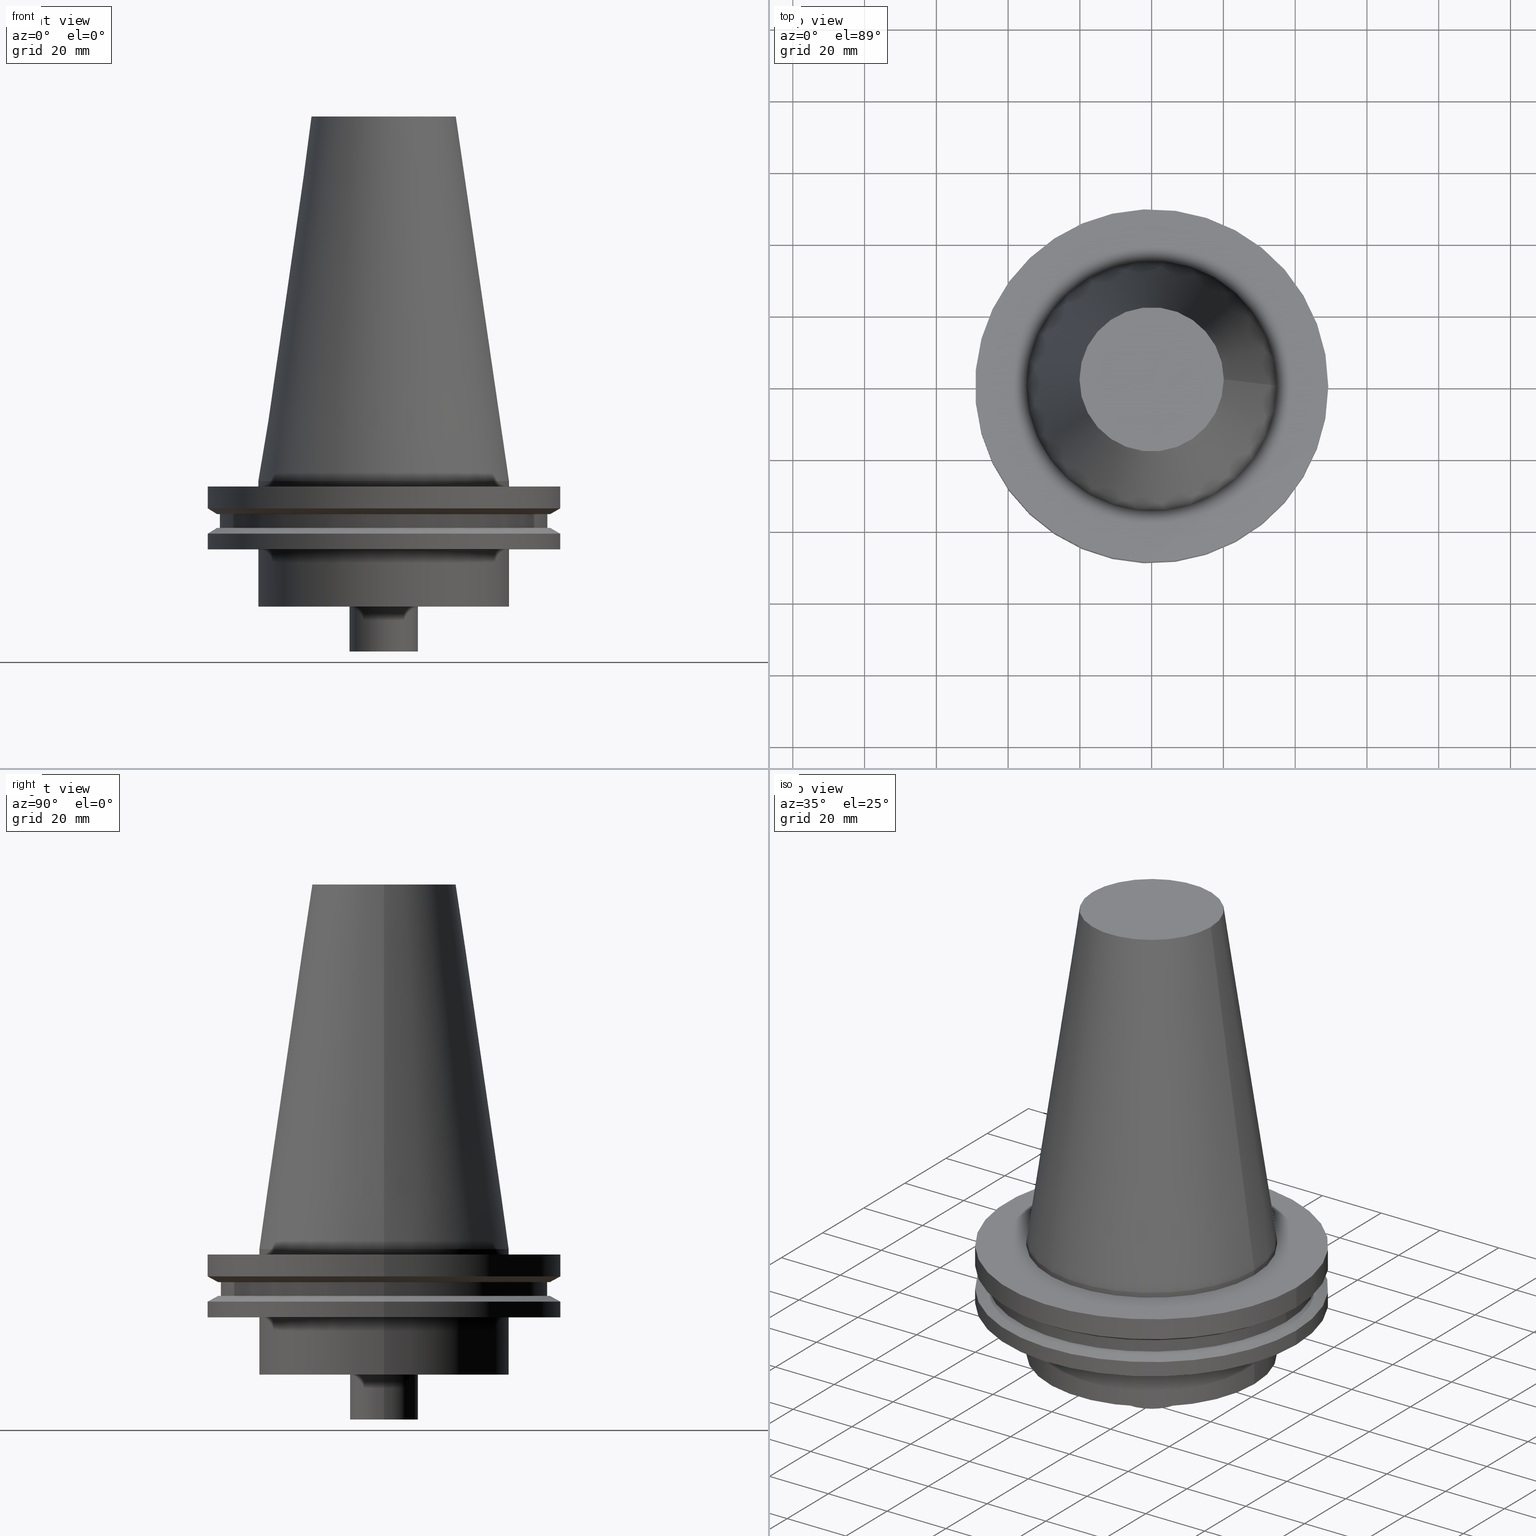
[diagram: canonical four-view strip — front | top / right | iso, engineering-drawing reading convention]
A machine part, canonical four-view strip (front | top / right | iso — engineering-drawing reading convention). The complete STEP part file that produces these views, byte-faithful:
ISO-10303-21;
HEADER;
FILE_DESCRIPTION (( 'STEP AP203' ),
    '1' );
FILE_NAME ('11.326.610.stp',
    '2022-03-09T14:49:04',
    ( '' ),
    ( '' ),
    'SwSTEP 2.0',
    'SolidWorks 2021',
    '' );
FILE_SCHEMA (( 'CONFIG_CONTROL_DESIGN' ));
ENDSEC;

DATA;
#1 = CARTESIAN_POINT ( 'NONE',  ( 0.000000000000000000, 0.000000000000000000, 0.000000000000000000 ) ) ;
#2 = AXIS2_PLACEMENT_3D ( 'NONE', #110, #236, #205 ) ;
#3 = DIRECTION ( 'NONE',  ( 1.000000000000000000, 0.000000000000000000, 0.000000000000000000 ) ) ;
#4 = DIRECTION ( 'NONE',  ( -0.000000000000000000, -0.000000000000000000, 1.000000000000000000 ) ) ;
#5 = CIRCLE ( 'NONE', #393, 9.524999999999998579 ) ;
#6 = DIRECTION ( 'NONE',  ( 1.000000000000000000, 0.000000000000000000, 0.000000000000000000 ) ) ;
#7 = CIRCLE ( 'NONE', #98, 49.21499999999999631 ) ;
#8 = ORIENTED_EDGE ( 'NONE', *, *, #253, .T. ) ;
#9 = DIRECTION ( 'NONE',  ( -0.000000000000000000, -0.000000000000000000, 1.000000000000000000 ) ) ;
#10 = CARTESIAN_POINT ( 'NONE',  ( 0.000000000000000000, 0.000000000000000000, -35.00000000000000000 ) ) ;
#11 = APPROVAL_STATUS ( 'not_yet_approved' ) ;
#12 = AXIS2_PLACEMENT_3D ( 'NONE', #382, #107, #335 ) ;
#13 = CYLINDRICAL_SURFACE ( 'NONE', #144, 49.21499999999998920 ) ;
#14 = EDGE_LOOP ( 'NONE', ( #365 ) ) ;
#15 = ADVANCED_FACE ( 'NONE', ( #105, #100 ), #130, .T. ) ;
#16 = DIRECTION ( 'NONE',  ( 1.000000000000000000, 0.000000000000000000, 0.000000000000000000 ) ) ;
#17 = ORIENTED_EDGE ( 'NONE', *, *, #79, .F. ) ;
#18 = COORDINATED_UNIVERSAL_TIME_OFFSET ( 6, 0, .BEHIND. ) ;
#19 = CARTESIAN_POINT ( 'NONE',  ( 0.000000000000000000, 0.000000000000000000, -1.499999999999987566 ) ) ;
#20 = EDGE_LOOP ( 'NONE', ( #63 ) ) ;
#21 = APPROVAL_ROLE ( '' ) ;
#22 = DIRECTION ( 'NONE',  ( -1.000000000000000000, 0.000000000000000000, 0.000000000000000000 ) ) ;
#23 = APPLICATION_CONTEXT ( 'configuration controlled 3d designs of mechanical parts and assemblies' ) ;
#24 = EDGE_LOOP ( 'NONE', ( #184 ) ) ;
#25 = DIRECTION ( 'NONE',  ( 0.000000000000000000, -0.000000000000000000, 1.000000000000000000 ) ) ;
#26 = AXIS2_PLACEMENT_3D ( 'NONE', #198, #135, #281 ) ;
#27 = LOCAL_TIME ( 8, 49, 4.000000000000000000, #72 ) ;
#28 = DIRECTION ( 'NONE',  ( -1.000000000000000000, 0.000000000000000000, -0.000000000000000000 ) ) ;
#29 = DIRECTION ( 'NONE',  ( -0.000000000000000000, -0.000000000000000000, 1.000000000000000000 ) ) ;
#30 = AXIS2_PLACEMENT_3D ( 'NONE', #46, #169, #3 ) ;
#31 = VERTEX_POINT ( 'NONE', #36 ) ;
#32 = ADVANCED_FACE ( 'NONE', ( #224 ), #379, .F. ) ;
#33 = AXIS2_PLACEMENT_3D ( 'NONE', #355, #9, #218 ) ;
#34 = ADVANCED_FACE ( 'NONE', ( #102, #201 ), #313, .T. ) ;
#35 = DIRECTION ( 'NONE',  ( 1.000000000000000000, 0.000000000000000000, 0.000000000000000000 ) ) ;
#36 = CARTESIAN_POINT ( 'NONE',  ( 34.92499999999999005, 0.000000000000000000, 0.000000000000000000 ) ) ;
#37 = AXIS2_PLACEMENT_3D ( 'NONE', #359, #56, #387 ) ;
#38 = DIRECTION ( 'NONE',  ( 1.000000000000000000, 0.000000000000000000, 0.000000000000000000 ) ) ;
#39 = EDGE_CURVE ( 'NONE', #309, #309, #109, .T. ) ;
#40 = FACE_BOUND ( 'NONE', #125, .T. ) ;
#41 = EDGE_LOOP ( 'NONE', ( #92 ) ) ;
#42 = PERSON_AND_ORGANIZATION_ROLE ( 'creator' ) ;
#43 = DIRECTION ( 'NONE',  ( -0.000000000000000000, -0.000000000000000000, 1.000000000000000000 ) ) ;
#44 = DATE_AND_TIME ( #69, #241 ) ;
#45 = CC_DESIGN_PERSON_AND_ORGANIZATION_ASSIGNMENT ( #147, #173, ( #347 ) ) ;
#46 = CARTESIAN_POINT ( 'NONE',  ( 0.000000000000000000, 0.000000000000000000, -9.204999999999991189 ) ) ;
#47 = ORIENTED_EDGE ( 'NONE', *, *, #133, .F. ) ;
#48 = FACE_BOUND ( 'NONE', #187, .T. ) ;
#49 = ORIENTED_EDGE ( 'NONE', *, *, #112, .F. ) ;
#50 = CALENDAR_DATE ( 2022, 9, 3 ) ;
#51 = DIRECTION ( 'NONE',  ( 0.000000000000000000, 0.000000000000000000, -1.000000000000000000 ) ) ;
#52 = APPROVAL ( #312, 'UNSPECIFIED' ) ;
#53 = ORIENTED_EDGE ( 'NONE', *, *, #310, .F. ) ;
#54 = DIRECTION ( 'NONE',  ( 1.000000000000000000, 0.000000000000000000, 0.000000000000000000 ) ) ;
#55 = MANIFOLD_SOLID_BREP ( 'CKB', #299 ) ;
#56 = DIRECTION ( 'NONE',  ( -0.000000000000000000, -0.000000000000000000, 1.000000000000000000 ) ) ;
#57 = CYLINDRICAL_SURFACE ( 'NONE', #2, 34.92499999999999005 ) ;
#58 = ADVANCED_FACE ( 'NONE', ( #374, #220 ), #13, .T. ) ;
#59 = VERTEX_POINT ( 'NONE', #305 ) ;
#60 = CARTESIAN_POINT ( 'NONE',  ( 34.92499999999999005, 0.000000000000000000, -1.499999999999987566 ) ) ;
#61 = ORIENTED_EDGE ( 'NONE', *, *, #133, .T. ) ;
#62 = ADVANCED_FACE ( 'NONE', ( #222, #277 ), #217, .F. ) ;
#63 = ORIENTED_EDGE ( 'NONE', *, *, #182, .T. ) ;
#64 = AXIS2_PLACEMENT_3D ( 'NONE', #226, #304, #35 ) ;
#65 = CARTESIAN_POINT ( 'NONE',  ( 0.000000000000000000, 0.000000000000000000, -9.204999999999991189 ) ) ;
#66 = DIRECTION ( 'NONE',  ( 1.000000000000000000, 0.000000000000000000, 0.000000000000000000 ) ) ;
#67 = DIRECTION ( 'NONE',  ( 1.000000000000000000, 0.000000000000000000, 0.000000000000000000 ) ) ;
#68 = DIRECTION ( 'NONE',  ( -0.000000000000000000, -0.000000000000000000, 1.000000000000000000 ) ) ;
#69 = CALENDAR_DATE ( 2022, 9, 3 ) ;
#70 = CARTESIAN_POINT ( 'NONE',  ( 0.000000000000000000, 0.000000000000000000, -14.65761014474876944 ) ) ;
#71 = CC_DESIGN_APPROVAL ( #301, ( #303 ) ) ;
#72 = COORDINATED_UNIVERSAL_TIME_OFFSET ( 6, 0, .BEHIND. ) ;
#73 = CARTESIAN_POINT ( 'NONE',  ( 0.000000000000000000, 9.524999999999998579, -47.50000000000000711 ) ) ;
#74 = ORIENTED_EDGE ( 'NONE', *, *, #79, .T. ) ;
#75 = CIRCLE ( 'NONE', #368, 45.64500000000000313 ) ;
#76 = DIRECTION ( 'NONE',  ( -0.000000000000000000, -0.000000000000000000, 1.000000000000000000 ) ) ;
#77 = ORIENTED_EDGE ( 'NONE', *, *, #367, .T. ) ;
#78 = APPLICATION_PROTOCOL_DEFINITION ( 'international standard', 'config_control_design', 1994, #360 ) ;
#79 = EDGE_CURVE ( 'NONE', #250, #250, #153, .T. ) ;
#80 = PLANE ( 'NONE',  #228 ) ;
#81 = AXIS2_PLACEMENT_3D ( 'NONE', #1, #4, #191 ) ;
#82 = EDGE_LOOP ( 'NONE', ( #372 ) ) ;
#83 = PERSON_AND_ORGANIZATION ( #95, #255 ) ;
#84 = EDGE_CURVE ( 'NONE', #90, #90, #333, .T. ) ;
#85 = DIRECTION ( 'NONE',  ( 1.000000000000000000, 0.000000000000000000, 0.000000000000000000 ) ) ;
#86 = DIRECTION ( 'NONE',  ( -0.000000000000000000, -0.000000000000000000, 1.000000000000000000 ) ) ;
#87 = AXIS2_PLACEMENT_3D ( 'NONE', #209, #29, #152 ) ;
#88 = CYLINDRICAL_SURFACE ( 'NONE', #391, 45.64500000000000313 ) ;
#89 = ADVANCED_FACE ( 'NONE', ( #377, #311 ), #167, .F. ) ;
#90 = VERTEX_POINT ( 'NONE', #272 ) ;
#91 = ORIENTED_EDGE ( 'NONE', *, *, #112, .T. ) ;
#92 = ORIENTED_EDGE ( 'NONE', *, *, #182, .F. ) ;
#93 = CARTESIAN_POINT ( 'NONE',  ( 9.524999999999998579, 0.000000000000000000, -35.00000000000000000 ) ) ;
#94 = AXIS2_PLACEMENT_3D ( 'NONE', #10, #76, #134 ) ;
#95 = PERSON ( 'UNSPECIFIED', 'UNSPECIFIED', 'UNSPECIFIED', ('UNSPECIFIED'), ('UNSPECIFIED'), ('UNSPECIFIED') ) ;
#96 = ORIENTED_EDGE ( 'NONE', *, *, #39, .T. ) ;
#97 = CARTESIAN_POINT ( 'NONE',  ( 34.92499999999999716, 0.000000000000000000, -19.04999999999999716 ) ) ;
#98 = AXIS2_PLACEMENT_3D ( 'NONE', #19, #210, #54 ) ;
#99 = DIRECTION ( 'NONE',  ( 1.000000000000000000, 0.000000000000000000, 0.000000000000000000 ) ) ;
#100 = FACE_OUTER_BOUND ( 'NONE', #244, .T. ) ;
#101 = APPROVAL_ROLE ( '' ) ;
#102 = FACE_OUTER_BOUND ( 'NONE', #369, .T. ) ;
#103 = PERSON_AND_ORGANIZATION ( #95, #255 ) ;
#104 = CIRCLE ( 'NONE', #157, 45.64500000000000313 ) ;
#105 = FACE_OUTER_BOUND ( 'NONE', #159, .T. ) ;
#106 = EDGE_LOOP ( 'NONE', ( #283 ) ) ;
#107 = DIRECTION ( 'NONE',  ( 0.000000000000000000, 0.000000000000000000, -1.000000000000000000 ) ) ;
#108 = DATE_AND_TIME ( #50, #27 ) ;
#109 = CIRCLE ( 'NONE', #94, 9.524999999999998579 ) ;
#110 = CARTESIAN_POINT ( 'NONE',  ( 0.000000000000000000, 0.000000000000000000, 101.5999999999999943 ) ) ;
#111 = COORDINATED_UNIVERSAL_TIME_OFFSET ( 6, 0, .BEHIND. ) ;
#112 = EDGE_CURVE ( 'NONE', #394, #394, #376, .T. ) ;
#113 = DIRECTION ( 'NONE',  ( 0.000000000000000000, -0.000000000000000000, 1.000000000000000000 ) ) ;
#114 = ORIENTED_EDGE ( 'NONE', *, *, #253, .F. ) ;
#115 = FACE_OUTER_BOUND ( 'NONE', #371, .T. ) ;
#116 = PLANE ( 'NONE',  #287 ) ;
#117 = CIRCLE ( 'NONE', #307, 46.43919780457007818 ) ;
#118 = APPROVAL ( #11, 'UNSPECIFIED' ) ;
#119 = FACE_OUTER_BOUND ( 'NONE', #271, .T. ) ;
#120 = VERTEX_POINT ( 'NONE', #127 ) ;
#121 = CC_DESIGN_PERSON_AND_ORGANIZATION_ASSIGNMENT ( #290, #200, ( #317 ) ) ;
#122 = VERTEX_POINT ( 'NONE', #181 ) ;
#123 = EDGE_LOOP ( 'NONE', ( #114 ) ) ;
#124 = EDGE_CURVE ( 'NONE', #395, #395, #363, .T. ) ;
#125 = EDGE_LOOP ( 'NONE', ( #74 ) ) ;
#126 = AXIS2_PLACEMENT_3D ( 'NONE', #73, #160, #16 ) ;
#127 = CARTESIAN_POINT ( 'NONE',  ( 9.524999999999998579, 0.000000000000000000, -47.50000000000000711 ) ) ;
#128 = DIRECTION ( 'NONE',  ( -0.000000000000000000, -0.000000000000000000, 1.000000000000000000 ) ) ;
#129 = DIRECTION ( 'NONE',  ( -0.000000000000000000, -0.000000000000000000, 1.000000000000000000 ) ) ;
#130 = CYLINDRICAL_SURFACE ( 'NONE', #349, 34.92499999999999716 ) ;
#131 = EDGE_LOOP ( 'NONE', ( #96 ) ) ;
#132 = CARTESIAN_POINT ( 'NONE',  ( 0.000000000000000000, 0.000000000000000000, -9.204999999999991189 ) ) ;
#133 = EDGE_CURVE ( 'NONE', #238, #238, #75, .T. ) ;
#134 = DIRECTION ( 'NONE',  ( 1.000000000000000000, 0.000000000000000000, 0.000000000000000000 ) ) ;
#135 = DIRECTION ( 'NONE',  ( 0.000000000000000000, 0.000000000000000000, 1.000000000000000000 ) ) ;
#136 = AXIS2_PLACEMENT_3D ( 'NONE', #322, #113, #85 ) ;
#137 = CARTESIAN_POINT ( 'NONE',  ( 0.000000000000000000, 0.000000000000000000, 101.5999999999999943 ) ) ;
#138 = DIRECTION ( 'NONE',  ( -1.000000000000000000, 0.000000000000000000, -0.000000000000000000 ) ) ;
#139 = EDGE_LOOP ( 'NONE', ( #142 ) ) ;
#140 = FACE_OUTER_BOUND ( 'NONE', #388, .T. ) ;
#141 = ADVANCED_FACE ( 'NONE', ( #280, #341 ), #274, .T. ) ;
#142 = ORIENTED_EDGE ( 'NONE', *, *, #84, .F. ) ;
#143 = DATE_AND_TIME ( #381, #265 ) ;
#144 = AXIS2_PLACEMENT_3D ( 'NONE', #137, #128, #99 ) ;
#145 = FACE_OUTER_BOUND ( 'NONE', #331, .T. ) ;
#146 = EDGE_LOOP ( 'NONE', ( #199 ) ) ;
#147 = PERSON_AND_ORGANIZATION ( #95, #255 ) ;
#148 = DIRECTION ( 'NONE',  ( -0.000000000000000000, -0.000000000000000000, 1.000000000000000000 ) ) ;
#149 = LOCAL_TIME ( 8, 49, 4.000000000000000000, #378 ) ;
#150 = LOCAL_TIME ( 8, 49, 4.000000000000000000, #18 ) ;
#151 = CARTESIAN_POINT ( 'NONE',  ( 0.000000000000000000, 0.000000000000000000, 0.000000000000000000 ) ) ;
#152 = DIRECTION ( 'NONE',  ( 1.000000000000000000, 0.000000000000000000, 0.000000000000000000 ) ) ;
#153 = CIRCLE ( 'NONE', #30, 46.43919780457007818 ) ;
#154 = VERTEX_POINT ( 'NONE', #162 ) ;
#155 = ADVANCED_FACE ( 'NONE', ( #232, #145 ), #57, .T. ) ;
#156 = AXIS2_PLACEMENT_3D ( 'NONE', #268, #263, #237 ) ;
#157 = AXIS2_PLACEMENT_3D ( 'NONE', #132, #164, #196 ) ;
#158 = PRODUCT_RELATED_PRODUCT_CATEGORY ( 'detail', '', ( #347 ) ) ;
#159 = EDGE_LOOP ( 'NONE', ( #328 ) ) ;
#160 = DIRECTION ( 'NONE',  ( 0.000000000000000000, -0.000000000000000000, 1.000000000000000000 ) ) ;
#161 = CIRCLE ( 'NONE', #87, 49.21500000000000341 ) ;
#162 = CARTESIAN_POINT ( 'NONE',  ( 45.64500000000000313, 0.000000000000000000, -9.204999999999991189 ) ) ;
#163 = CARTESIAN_POINT ( 'NONE',  ( 0.000000000000000000, 0.000000000000000000, 0.000000000000000000 ) ) ;
#164 = DIRECTION ( 'NONE',  ( -0.000000000000000000, -0.000000000000000000, 1.000000000000000000 ) ) ;
#165 = DIRECTION ( 'NONE',  ( 1.000000000000000000, 0.000000000000000000, 0.000000000000000000 ) ) ;
#166 = APPROVAL_ROLE ( '' ) ;
#167 = PLANE ( 'NONE',  #12 ) ;
#168 = AXIS2_PLACEMENT_3D ( 'NONE', #151, #318, #178 ) ;
#169 = DIRECTION ( 'NONE',  ( -0.000000000000000000, -0.000000000000000000, 1.000000000000000000 ) ) ;
#170 = PERSON_AND_ORGANIZATION_ROLE ( 'design_supplier' ) ;
#171 = EDGE_CURVE ( 'NONE', #211, #211, #284, .T. ) ;
#172 = PLANE ( 'NONE',  #323 ) ;
#173 = PERSON_AND_ORGANIZATION_ROLE ( 'design_owner' ) ;
#174 = UNCERTAINTY_MEASURE_WITH_UNIT (LENGTH_MEASURE( 1.000000000000000082E-05 ), #185, 'distance_accuracy_value', 'NONE');
#175 = DIRECTION ( 'NONE',  ( 1.000000000000000000, 0.000000000000000000, 0.000000000000000000 ) ) ;
#176 = ORIENTED_EDGE ( 'NONE', *, *, #39, .F. ) ;
#177 = DIRECTION ( 'NONE',  ( 1.000000000000000000, 0.000000000000000000, 0.000000000000000000 ) ) ;
#178 = DIRECTION ( 'NONE',  ( -1.000000000000000000, 0.000000000000000000, 0.000000000000000000 ) ) ;
#179 = APPROVAL_PERSON_ORGANIZATION ( #261, #301, #166 ) ;
#180 = CARTESIAN_POINT ( 'NONE',  ( 0.000000000000000000, 20.10819343178871321, 101.5999999999999943 ) ) ;
#181 = CARTESIAN_POINT ( 'NONE',  ( 49.21500000000000341, 0.000000000000000000, -7.602389855251287187 ) ) ;
#182 = EDGE_CURVE ( 'NONE', #59, #59, #117, .T. ) ;
#183 = CIRCLE ( 'NONE', #231, 34.92499999999999716 ) ;
#184 = ORIENTED_EDGE ( 'NONE', *, *, #171, .T. ) ;
#185 =( LENGTH_UNIT ( ) NAMED_UNIT ( * ) SI_UNIT ( .MILLI., .METRE. ) );
#186 = EDGE_LOOP ( 'NONE', ( #308 ) ) ;
#187 = EDGE_LOOP ( 'NONE', ( #385 ) ) ;
#188 = ADVANCED_FACE ( 'NONE', ( #324, #288 ), #296, .T. ) ;
#189 = ORIENTED_EDGE ( 'NONE', *, *, #310, .T. ) ;
#190 = ORIENTED_EDGE ( 'NONE', *, *, #212, .T. ) ;
#191 = DIRECTION ( 'NONE',  ( 1.000000000000000000, 0.000000000000000000, 0.000000000000000000 ) ) ;
#192 = PRODUCT_DEFINITION_SHAPE ( 'NONE', 'NONE',  #317 ) ;
#193 = ADVANCED_FACE ( 'NONE', ( #115 ), #80, .F. ) ;
#194 = DIRECTION ( 'NONE',  ( 0.000000000000000000, 0.000000000000000000, -1.000000000000000000 ) ) ;
#195 = AXIS2_PLACEMENT_3D ( 'NONE', #243, #68, #6 ) ;
#196 = DIRECTION ( 'NONE',  ( 1.000000000000000000, 0.000000000000000000, 0.000000000000000000 ) ) ;
#197 = DIRECTION ( 'NONE',  ( -0.000000000000000000, -0.000000000000000000, 1.000000000000000000 ) ) ;
#198 = CARTESIAN_POINT ( 'NONE',  ( 0.000000000000000000, 0.000000000000000000, 0.000000000000000000 ) ) ;
#199 = ORIENTED_EDGE ( 'NONE', *, *, #124, .T. ) ;
#200 = PERSON_AND_ORGANIZATION_ROLE ( 'creator' ) ;
#201 = FACE_OUTER_BOUND ( 'NONE', #249, .T. ) ;
#202 = EDGE_LOOP ( 'NONE', ( #258 ) ) ;
#203 = FACE_OUTER_BOUND ( 'NONE', #82, .T. ) ;
#204 = PERSON_AND_ORGANIZATION ( #95, #255 ) ;
#205 = DIRECTION ( 'NONE',  ( 1.000000000000000000, 0.000000000000000000, 0.000000000000000000 ) ) ;
#206 = DATE_AND_TIME ( #343, #149 ) ;
#207 = DIRECTION ( 'NONE',  ( 0.000000000000000000, 0.000000000000000000, -1.000000000000000000 ) ) ;
#208 = ADVANCED_FACE ( 'NONE', ( #350, #298 ), #326, .T. ) ;
#209 = CARTESIAN_POINT ( 'NONE',  ( 0.000000000000000000, 0.000000000000000000, -7.602389855251287187 ) ) ;
#210 = DIRECTION ( 'NONE',  ( -0.000000000000000000, -0.000000000000000000, 1.000000000000000000 ) ) ;
#211 = VERTEX_POINT ( 'NONE', #325 ) ;
#212 = EDGE_CURVE ( 'NONE', #122, #122, #161, .T. ) ;
#213 =( NAMED_UNIT ( * ) PLANE_ANGLE_UNIT ( ) SI_UNIT ( $, .RADIAN. ) );
#214 = CARTESIAN_POINT ( 'NONE',  ( 49.21499999999998920, 0.000000000000000000, -14.65761014474876944 ) ) ;
#215 =( GEOMETRIC_REPRESENTATION_CONTEXT ( 3 ) GLOBAL_UNCERTAINTY_ASSIGNED_CONTEXT ( ( #174 ) ) GLOBAL_UNIT_ASSIGNED_CONTEXT ( ( #185, #213, #239 ) ) REPRESENTATION_CONTEXT ( 'NONE', 'WORKASPACE' ) );
#216 = AXIS2_PLACEMENT_3D ( 'NONE', #257, #285, #38 ) ;
#217 = PLANE ( 'NONE',  #235 ) ;
#218 = DIRECTION ( 'NONE',  ( 1.000000000000000000, 0.000000000000000000, 0.000000000000000000 ) ) ;
#219 = ADVANCED_FACE ( 'NONE', ( #203, #357 ), #88, .T. ) ;
#220 = FACE_OUTER_BOUND ( 'NONE', #24, .T. ) ;
#221 = DATE_AND_TIME ( #227, #150 ) ;
#222 = FACE_BOUND ( 'NONE', #240, .T. ) ;
#223 = PERSON_AND_ORGANIZATION ( #95, #255 ) ;
#224 = FACE_OUTER_BOUND ( 'NONE', #14, .T. ) ;
#225 = CC_DESIGN_PERSON_AND_ORGANIZATION_ASSIGNMENT ( #223, #286, ( #303 ) ) ;
#226 = CARTESIAN_POINT ( 'NONE',  ( 0.000000000000000000, 0.000000000000000000, -14.65761014474876944 ) ) ;
#227 = CALENDAR_DATE ( 2022, 9, 3 ) ;
#228 = AXIS2_PLACEMENT_3D ( 'NONE', #180, #207, #28 ) ;
#229 = CARTESIAN_POINT ( 'NONE',  ( 0.000000000000000000, 0.000000000000000000, -13.05499999999999794 ) ) ;
#230 = SHAPE_DEFINITION_REPRESENTATION ( #192, #256 ) ;
#231 = AXIS2_PLACEMENT_3D ( 'NONE', #302, #129, #327 ) ;
#232 = FACE_OUTER_BOUND ( 'NONE', #348, .T. ) ;
#233 = EDGE_LOOP ( 'NONE', ( #190 ) ) ;
#234 = DIRECTION ( 'NONE',  ( 1.000000000000000000, 0.000000000000000000, 0.000000000000000000 ) ) ;
#235 = AXIS2_PLACEMENT_3D ( 'NONE', #273, #194, #138 ) ;
#236 = DIRECTION ( 'NONE',  ( -0.000000000000000000, -0.000000000000000000, 1.000000000000000000 ) ) ;
#237 = DIRECTION ( 'NONE',  ( 1.000000000000000000, 0.000000000000000000, 0.000000000000000000 ) ) ;
#238 = VERTEX_POINT ( 'NONE', #329 ) ;
#239 =( NAMED_UNIT ( * ) SI_UNIT ( $, .STERADIAN. ) SOLID_ANGLE_UNIT ( ) );
#240 = EDGE_LOOP ( 'NONE', ( #47 ) ) ;
#241 = LOCAL_TIME ( 8, 49, 4.000000000000000000, #111 ) ;
#242 = ADVANCED_FACE ( 'NONE', ( #140, #267 ), #354, .F. ) ;
#243 = CARTESIAN_POINT ( 'NONE',  ( 0.000000000000000000, 0.000000000000000000, -19.04999999999999716 ) ) ;
#244 = EDGE_LOOP ( 'NONE', ( #77 ) ) ;
#245 = CIRCLE ( 'NONE', #81, 34.92499999999999005 ) ;
#246 = EDGE_CURVE ( 'NONE', #120, #120, #5, .T. ) ;
#247 = VERTEX_POINT ( 'NONE', #60 ) ;
#248 = DIRECTION ( 'NONE',  ( 1.000000000000000000, 0.000000000000000000, 0.000000000000000000 ) ) ;
#249 = EDGE_LOOP ( 'NONE', ( #292 ) ) ;
#250 = VERTEX_POINT ( 'NONE', #279 ) ;
#251 = CARTESIAN_POINT ( 'NONE',  ( 0.000000000000000000, 0.000000000000000000, -13.05499999999999794 ) ) ;
#252 = SECURITY_CLASSIFICATION_LEVEL ( 'unclassified' ) ;
#253 = EDGE_CURVE ( 'NONE', #370, #370, #7, .T. ) ;
#254 = EDGE_LOOP ( 'NONE', ( #91 ) ) ;
#255 = ORGANIZATION ( 'UNSPECIFIED', 'UNSPECIFIED', '' ) ;
#256 = ADVANCED_BREP_SHAPE_REPRESENTATION ( '11.326.610', ( #55, #26 ), #215 ) ;
#257 = CARTESIAN_POINT ( 'NONE',  ( 0.000000000000000000, 0.000000000000000000, 101.5999999999999801 ) ) ;
#258 = ORIENTED_EDGE ( 'NONE', *, *, #367, .F. ) ;
#259 = DATE_TIME_ROLE ( 'classification_date' ) ;
#260 = CARTESIAN_POINT ( 'NONE',  ( 0.000000000000000000, 46.43919780457007818, -9.204999999999998295 ) ) ;
#261 = PERSON_AND_ORGANIZATION ( #95, #255 ) ;
#262 = AXIS2_PLACEMENT_3D ( 'NONE', #163, #306, #248 ) ;
#263 = DIRECTION ( 'NONE',  ( -0.000000000000000000, -0.000000000000000000, 1.000000000000000000 ) ) ;
#264 = APPROVAL_PERSON_ORGANIZATION ( #204, #118, #21 ) ;
#265 = LOCAL_TIME ( 8, 49, 4.000000000000000000, #375 ) ;
#266 = FACE_OUTER_BOUND ( 'NONE', #202, .T. ) ;
#267 = FACE_BOUND ( 'NONE', #146, .T. ) ;
#268 = CARTESIAN_POINT ( 'NONE',  ( 0.000000000000000000, 0.000000000000000000, -19.04999999999999716 ) ) ;
#269 = ADVANCED_FACE ( 'NONE', ( #390, #266 ), #116, .F. ) ;
#270 = CARTESIAN_POINT ( 'NONE',  ( 34.92499999999999716, 0.000000000000000000, -35.00000000000000000 ) ) ;
#271 = EDGE_LOOP ( 'NONE', ( #17 ) ) ;
#272 = CARTESIAN_POINT ( 'NONE',  ( 20.10819343178871321, 0.000000000000000000, 101.5999999999999801 ) ) ;
#273 = CARTESIAN_POINT ( 'NONE',  ( 0.000000000000000000, 45.64500000000000313, -13.05499999999999794 ) ) ;
#274 = CONICAL_SURFACE ( 'NONE', #321, 49.21499999999998920, 1.047197551196554333 ) ;
#275 = ADVANCED_FACE ( 'NONE', ( #119, #48 ), #172, .F. ) ;
#276 = APPLICATION_PROTOCOL_DEFINITION ( 'international standard', 'config_control_design', 1994, #23 ) ;
#277 = FACE_OUTER_BOUND ( 'NONE', #20, .T. ) ;
#278 = CC_DESIGN_APPROVAL ( #52, ( #358 ) ) ;
#279 = CARTESIAN_POINT ( 'NONE',  ( 46.43919780457007818, 0.000000000000000000, -9.204999999999991189 ) ) ;
#280 = FACE_BOUND ( 'NONE', #41, .T. ) ;
#281 = DIRECTION ( 'NONE',  ( 1.000000000000000000, 0.000000000000000000, 0.000000000000000000 ) ) ;
#282 = EDGE_CURVE ( 'NONE', #247, #247, #342, .T. ) ;
#283 = ORIENTED_EDGE ( 'NONE', *, *, #212, .F. ) ;
#284 = CIRCLE ( 'NONE', #156, 49.21499999999998920 ) ;
#285 = DIRECTION ( 'NONE',  ( -0.000000000000000000, -0.000000000000000000, 1.000000000000000000 ) ) ;
#286 = PERSON_AND_ORGANIZATION_ROLE ( 'classification_officer' ) ;
#287 = AXIS2_PLACEMENT_3D ( 'NONE', #294, #25, #389 ) ;
#288 = FACE_OUTER_BOUND ( 'NONE', #233, .T. ) ;
#289 = ORIENTED_EDGE ( 'NONE', *, *, #171, .F. ) ;
#290 = PERSON_AND_ORGANIZATION ( #95, #255 ) ;
#291 = DIRECTION ( 'NONE',  ( 1.000000000000000000, 0.000000000000000000, 0.000000000000000000 ) ) ;
#292 = ORIENTED_EDGE ( 'NONE', *, *, #246, .T. ) ;
#293 = MECHANICAL_CONTEXT ( 'NONE', #23, 'mechanical' ) ;
#294 = CARTESIAN_POINT ( 'NONE',  ( 0.000000000000000000, 34.92499999999999716, -35.00000000000000000 ) ) ;
#295 = CC_DESIGN_SECURITY_CLASSIFICATION ( #303, ( #358 ) ) ;
#296 = CYLINDRICAL_SURFACE ( 'NONE', #37, 49.21499999999999631 ) ;
#297 = CC_DESIGN_PERSON_AND_ORGANIZATION_ASSIGNMENT ( #339, #42, ( #358 ) ) ;
#298 = FACE_OUTER_BOUND ( 'NONE', #345, .T. ) ;
#299 = CLOSED_SHELL ( 'NONE', ( #208, #193, #269, #15, #242, #58, #141, #62, #219, #275, #334, #188, #89, #155, #34, #32 ) ) ;
#300 = CARTESIAN_POINT ( 'NONE',  ( 49.21499999999999631, 0.000000000000000000, -1.499999999999987566 ) ) ;
#301 = APPROVAL ( #386, 'UNSPECIFIED' ) ;
#302 = CARTESIAN_POINT ( 'NONE',  ( 0.000000000000000000, 0.000000000000000000, -35.00000000000000000 ) ) ;
#303 = SECURITY_CLASSIFICATION ( '', '', #252 ) ;
#304 = DIRECTION ( 'NONE',  ( -0.000000000000000000, -0.000000000000000000, 1.000000000000000000 ) ) ;
#305 = CARTESIAN_POINT ( 'NONE',  ( 46.43919780457007818, 0.000000000000000000, -13.05499999999999794 ) ) ;
#306 = DIRECTION ( 'NONE',  ( -0.000000000000000000, -0.000000000000000000, 1.000000000000000000 ) ) ;
#307 = AXIS2_PLACEMENT_3D ( 'NONE', #229, #148, #175 ) ;
#308 = ORIENTED_EDGE ( 'NONE', *, *, #282, .F. ) ;
#309 = VERTEX_POINT ( 'NONE', #93 ) ;
#310 = EDGE_CURVE ( 'NONE', #31, #31, #245, .T. ) ;
#311 = FACE_OUTER_BOUND ( 'NONE', #314, .T. ) ;
#312 = APPROVAL_STATUS ( 'not_yet_approved' ) ;
#313 = CYLINDRICAL_SURFACE ( 'NONE', #262, 9.524999999999998579 ) ;
#314 = EDGE_LOOP ( 'NONE', ( #8 ) ) ;
#315 = CARTESIAN_POINT ( 'NONE',  ( 0.000000000000000000, 0.000000000000000000, 101.5999999999999943 ) ) ;
#316 = APPROVAL_DATE_TIME ( #221, #52 ) ;
#317 = PRODUCT_DEFINITION ( 'UNKNOWN', '', #358, #340 ) ;
#318 = DIRECTION ( 'NONE',  ( 0.000000000000000000, 0.000000000000000000, -1.000000000000000000 ) ) ;
#319 = APPROVAL_DATE_TIME ( #44, #301 ) ;
#320 = CARTESIAN_POINT ( 'NONE',  ( 0.000000000000000000, 0.000000000000000000, -47.50000000000000711 ) ) ;
#321 = AXIS2_PLACEMENT_3D ( 'NONE', #70, #51, #22 ) ;
#322 = CARTESIAN_POINT ( 'NONE',  ( 0.000000000000000000, 49.21499999999998920, -19.04999999999999716 ) ) ;
#323 = AXIS2_PLACEMENT_3D ( 'NONE', #260, #384, #234 ) ;
#324 = FACE_OUTER_BOUND ( 'NONE', #123, .T. ) ;
#325 = CARTESIAN_POINT ( 'NONE',  ( 49.21499999999998920, 0.000000000000000000, -19.04999999999999716 ) ) ;
#326 = CONICAL_SURFACE ( 'NONE', #168, 34.92499999999999005, 0.1448138465474119452 ) ;
#327 = DIRECTION ( 'NONE',  ( 1.000000000000000000, 0.000000000000000000, 0.000000000000000000 ) ) ;
#328 = ORIENTED_EDGE ( 'NONE', *, *, #124, .F. ) ;
#329 = CARTESIAN_POINT ( 'NONE',  ( 45.64500000000000313, 0.000000000000000000, -13.05499999999999794 ) ) ;
#330 = APPROVAL_PERSON_ORGANIZATION ( #103, #52, #101 ) ;
#331 = EDGE_LOOP ( 'NONE', ( #332 ) ) ;
#332 = ORIENTED_EDGE ( 'NONE', *, *, #282, .T. ) ;
#333 = CIRCLE ( 'NONE', #216, 20.10819343178871321 ) ;
#334 = ADVANCED_FACE ( 'NONE', ( #336, #40 ), #353, .T. ) ;
#335 = DIRECTION ( 'NONE',  ( -1.000000000000000000, 0.000000000000000000, -0.000000000000000000 ) ) ;
#336 = FACE_OUTER_BOUND ( 'NONE', #106, .T. ) ;
#337 = EDGE_CURVE ( 'NONE', #154, #154, #104, .T. ) ;
#338 = CARTESIAN_POINT ( 'NONE',  ( 0.000000000000000000, 0.000000000000000000, 101.5999999999999943 ) ) ;
#339 = PERSON_AND_ORGANIZATION ( #95, #255 ) ;
#340 = DESIGN_CONTEXT ( 'detailed design', #360, 'design' ) ;
#341 = FACE_OUTER_BOUND ( 'NONE', #254, .T. ) ;
#342 = CIRCLE ( 'NONE', #33, 34.92499999999999005 ) ;
#343 = CALENDAR_DATE ( 2022, 9, 3 ) ;
#344 = ORIENTED_EDGE ( 'NONE', *, *, #84, .T. ) ;
#345 = EDGE_LOOP ( 'NONE', ( #189 ) ) ;
#346 = APPROVAL_DATE_TIME ( #206, #118 ) ;
#347 = PRODUCT ( '11.326.610', '11.326.610', '', ( #293 ) ) ;
#348 = EDGE_LOOP ( 'NONE', ( #53 ) ) ;
#349 = AXIS2_PLACEMENT_3D ( 'NONE', #338, #43, #66 ) ;
#350 = FACE_BOUND ( 'NONE', #139, .T. ) ;
#351 = EDGE_LOOP ( 'NONE', ( #61 ) ) ;
#352 = DATE_TIME_ROLE ( 'creation_date' ) ;
#353 = CONICAL_SURFACE ( 'NONE', #366, 46.43919780457007818, 1.047197551196575205 ) ;
#354 = PLANE ( 'NONE',  #136 ) ;
#355 = CARTESIAN_POINT ( 'NONE',  ( 0.000000000000000000, 0.000000000000000000, -1.499999999999987566 ) ) ;
#356 = CC_DESIGN_DATE_AND_TIME_ASSIGNMENT ( #143, #352, ( #317 ) ) ;
#357 = FACE_OUTER_BOUND ( 'NONE', #351, .T. ) ;
#358 = PRODUCT_DEFINITION_FORMATION_WITH_SPECIFIED_SOURCE ( 'ANY', '', #347, .NOT_KNOWN. ) ;
#359 = CARTESIAN_POINT ( 'NONE',  ( 0.000000000000000000, 0.000000000000000000, 101.5999999999999943 ) ) ;
#360 = APPLICATION_CONTEXT ( 'configuration controlled 3d designs of mechanical parts and assemblies' ) ;
#361 = DIRECTION ( 'NONE',  ( -0.000000000000000000, -0.000000000000000000, 1.000000000000000000 ) ) ;
#362 = EDGE_LOOP ( 'NONE', ( #49 ) ) ;
#363 = CIRCLE ( 'NONE', #195, 34.92499999999999716 ) ;
#364 = VERTEX_POINT ( 'NONE', #270 ) ;
#365 = ORIENTED_EDGE ( 'NONE', *, *, #246, .F. ) ;
#366 = AXIS2_PLACEMENT_3D ( 'NONE', #65, #361, #67 ) ;
#367 = EDGE_CURVE ( 'NONE', #364, #364, #183, .T. ) ;
#368 = AXIS2_PLACEMENT_3D ( 'NONE', #251, #197, #165 ) ;
#369 = EDGE_LOOP ( 'NONE', ( #176 ) ) ;
#370 = VERTEX_POINT ( 'NONE', #300 ) ;
#371 = EDGE_LOOP ( 'NONE', ( #344 ) ) ;
#372 = ORIENTED_EDGE ( 'NONE', *, *, #337, .F. ) ;
#373 = CC_DESIGN_DATE_AND_TIME_ASSIGNMENT ( #108, #259, ( #303 ) ) ;
#374 = FACE_OUTER_BOUND ( 'NONE', #362, .T. ) ;
#375 = COORDINATED_UNIVERSAL_TIME_OFFSET ( 6, 0, .BEHIND. ) ;
#376 = CIRCLE ( 'NONE', #64, 49.21499999999998920 ) ;
#377 = FACE_BOUND ( 'NONE', #186, .T. ) ;
#378 = COORDINATED_UNIVERSAL_TIME_OFFSET ( 6, 0, .BEHIND. ) ;
#379 = PLANE ( 'NONE',  #126 ) ;
#380 = CC_DESIGN_APPROVAL ( #118, ( #317 ) ) ;
#381 = CALENDAR_DATE ( 2022, 9, 3 ) ;
#382 = CARTESIAN_POINT ( 'NONE',  ( 0.000000000000000000, 49.21499999999999631, -1.499999999999992895 ) ) ;
#383 = CC_DESIGN_PERSON_AND_ORGANIZATION_ASSIGNMENT ( #83, #170, ( #358 ) ) ;
#384 = DIRECTION ( 'NONE',  ( 0.000000000000000000, -0.000000000000000000, 1.000000000000000000 ) ) ;
#385 = ORIENTED_EDGE ( 'NONE', *, *, #337, .T. ) ;
#386 = APPROVAL_STATUS ( 'not_yet_approved' ) ;
#387 = DIRECTION ( 'NONE',  ( 1.000000000000000000, 0.000000000000000000, 0.000000000000000000 ) ) ;
#388 = EDGE_LOOP ( 'NONE', ( #289 ) ) ;
#389 = DIRECTION ( 'NONE',  ( 1.000000000000000000, 0.000000000000000000, 0.000000000000000000 ) ) ;
#390 = FACE_BOUND ( 'NONE', #131, .T. ) ;
#391 = AXIS2_PLACEMENT_3D ( 'NONE', #315, #392, #291 ) ;
#392 = DIRECTION ( 'NONE',  ( -0.000000000000000000, -0.000000000000000000, 1.000000000000000000 ) ) ;
#393 = AXIS2_PLACEMENT_3D ( 'NONE', #320, #86, #177 ) ;
#394 = VERTEX_POINT ( 'NONE', #214 ) ;
#395 = VERTEX_POINT ( 'NONE', #97 ) ;
ENDSEC;
END-ISO-10303-21;
